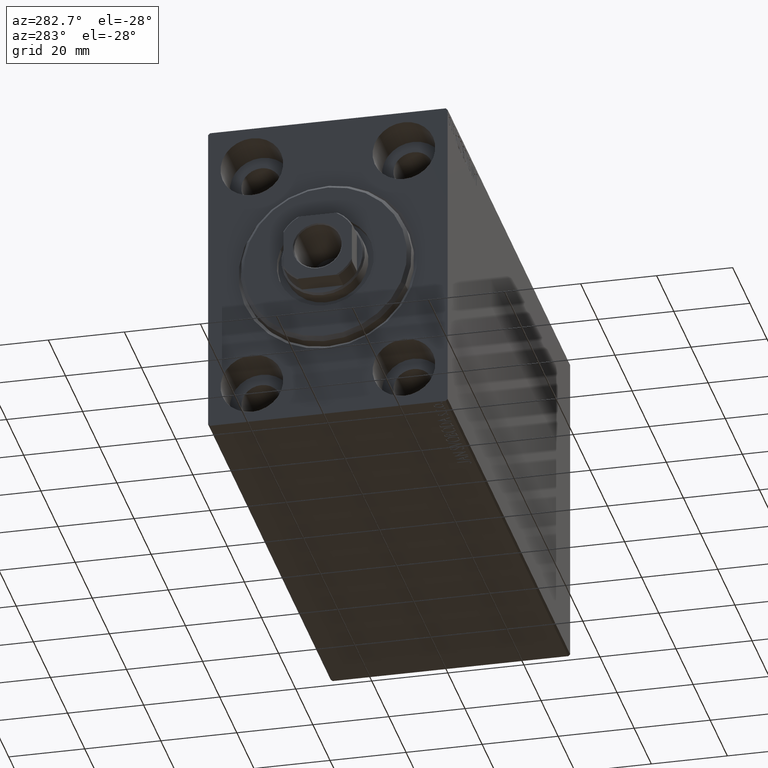
[diagram: clean part render]
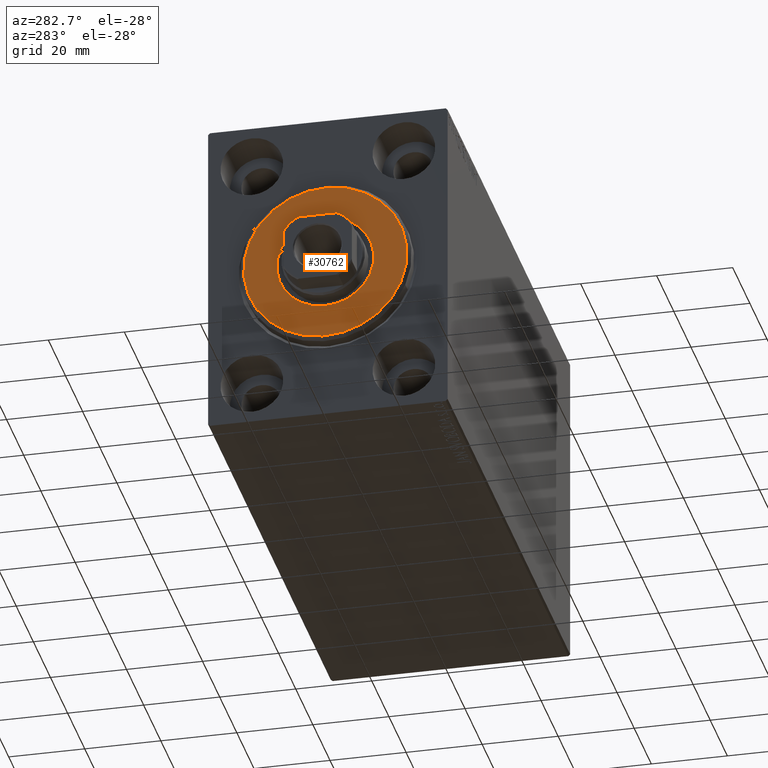
[diagram: same view with one face highlighted and labeled with its STEP entity id]
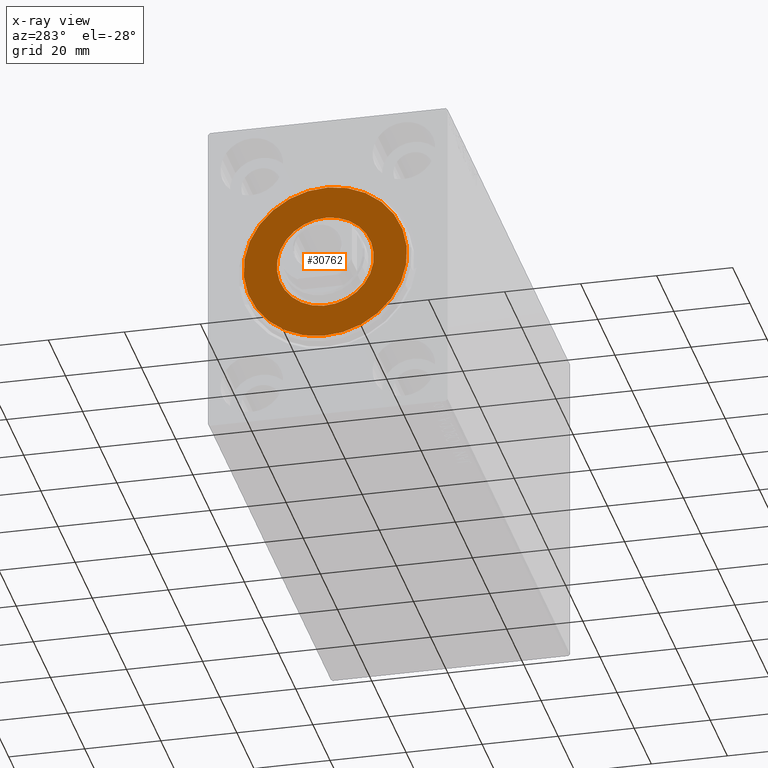
[diagram: x-ray of the same camera — body ghosted, the highlighted face saturated]
A machine part, auxiliary view. The second image highlights one B-rep face of the part: STEP entity #30762.
The next image is the same camera in x-ray: the body ghosted, the highlighted face saturated — about 0% of this face is hidden behind the body in this view.
In plain terms, the highlighted planar face has unit normal (-1, 0, 0).
Its self-contained STEP definition (entity closure, byte-faithful):
#285 = PLANE ( 'NONE',  #30053 ) ;
#1012 = CIRCLE ( 'NONE', #8861, 21.50000000000000355 ) ;
#1812 = EDGE_LOOP ( 'NONE', ( #6191, #2205 ) ) ;
#2045 = ORIENTED_EDGE ( 'NONE', *, *, #28447, .T. ) ;
#2205 = ORIENTED_EDGE ( 'NONE', *, *, #34637, .T. ) ;
#3000 = DIRECTION ( 'NONE',  ( 0.000000000000000000, 0.000000000000000000, -1.000000000000000000 ) ) ;
#3229 = DIRECTION ( 'NONE',  ( -1.000000000000000000, 0.000000000000000000, -0.000000000000000000 ) ) ;
#4086 = CARTESIAN_POINT ( 'NONE',  ( 3.000000000000000000, 0.000000000000000000, 0.000000000000000000 ) ) ;
#5671 = VERTEX_POINT ( 'NONE', #12527 ) ;
#5906 = DIRECTION ( 'NONE',  ( 0.000000000000000000, 0.000000000000000000, -1.000000000000000000 ) ) ;
#6191 = ORIENTED_EDGE ( 'NONE', *, *, #39106, .T. ) ;
#8861 = AXIS2_PLACEMENT_3D ( 'NONE', #44014, #40890, #40672 ) ;
#10453 = ORIENTED_EDGE ( 'NONE', *, *, #35405, .T. ) ;
#10727 = FACE_OUTER_BOUND ( 'NONE', #17076, .T. ) ;
#10769 = DIRECTION ( 'NONE',  ( 1.000000000000000000, -0.000000000000000000, 0.000000000000000000 ) ) ;
#10967 = DIRECTION ( 'NONE',  ( 0.000000000000000000, 0.000000000000000000, -1.000000000000000000 ) ) ;
#12527 = CARTESIAN_POINT ( 'NONE',  ( 3.000000000000000000, 2.694222958124177598E-15, -21.50000000000000355 ) ) ;
#12874 = VERTEX_POINT ( 'NONE', #18386 ) ;
#14691 = CIRCLE ( 'NONE', #39559, 12.75000000000000000 ) ;
#15075 = VERTEX_POINT ( 'NONE', #17009 ) ;
#15944 = AXIS2_PLACEMENT_3D ( 'NONE', #23028, #3229, #5906 ) ;
#17009 = CARTESIAN_POINT ( 'NONE',  ( 3.000000000000000000, 0.000000000000000000, 12.75000000000000000 ) ) ;
#17076 = EDGE_LOOP ( 'NONE', ( #2045, #10453 ) ) ;
#17195 = FACE_BOUND ( 'NONE', #1812, .T. ) ;
#18386 = CARTESIAN_POINT ( 'NONE',  ( 3.000000000000000000, 0.000000000000000000, 21.50000000000000355 ) ) ;
#21419 = CARTESIAN_POINT ( 'NONE',  ( 3.000000000000000000, 1.561424668912874914E-15, -12.75000000000000000 ) ) ;
#23028 = CARTESIAN_POINT ( 'NONE',  ( 3.000000000000000000, 0.000000000000000000, 0.000000000000000000 ) ) ;
#24296 = DIRECTION ( 'NONE',  ( 1.000000000000000000, -0.000000000000000000, 0.000000000000000000 ) ) ;
#24339 = CARTESIAN_POINT ( 'NONE',  ( 3.000000000000000000, 0.000000000000000000, 0.000000000000000000 ) ) ;
#27622 = CARTESIAN_POINT ( 'NONE',  ( 3.000000000000000000, 0.000000000000000000, 0.000000000000000000 ) ) ;
#28447 = EDGE_CURVE ( 'NONE', #12874, #5671, #39931, .T. ) ;
#30053 = AXIS2_PLACEMENT_3D ( 'NONE', #27622, #24296, #3000 ) ;
#30762 = ADVANCED_FACE ( 'NONE', ( #10727, #17195 ), #285, .T. ) ;
#31198 = DIRECTION ( 'NONE',  ( -1.000000000000000000, 0.000000000000000000, -0.000000000000000000 ) ) ;
#34637 = EDGE_CURVE ( 'NONE', #39059, #15075, #40814, .T. ) ;
#35405 = EDGE_CURVE ( 'NONE', #5671, #12874, #1012, .T. ) ;
#39059 = VERTEX_POINT ( 'NONE', #21419 ) ;
#39106 = EDGE_CURVE ( 'NONE', #15075, #39059, #14691, .T. ) ;
#39559 = AXIS2_PLACEMENT_3D ( 'NONE', #4086, #31198, #10967 ) ;
#39931 = CIRCLE ( 'NONE', #42038, 21.50000000000000355 ) ;
#40672 = DIRECTION ( 'NONE',  ( 0.000000000000000000, 0.000000000000000000, -1.000000000000000000 ) ) ;
#40814 = CIRCLE ( 'NONE', #15944, 12.75000000000000000 ) ;
#40890 = DIRECTION ( 'NONE',  ( 1.000000000000000000, -0.000000000000000000, 0.000000000000000000 ) ) ;
#41668 = DIRECTION ( 'NONE',  ( 0.000000000000000000, 0.000000000000000000, -1.000000000000000000 ) ) ;
#42038 = AXIS2_PLACEMENT_3D ( 'NONE', #24339, #10769, #41668 ) ;
#44014 = CARTESIAN_POINT ( 'NONE',  ( 3.000000000000000000, 0.000000000000000000, 0.000000000000000000 ) ) ;